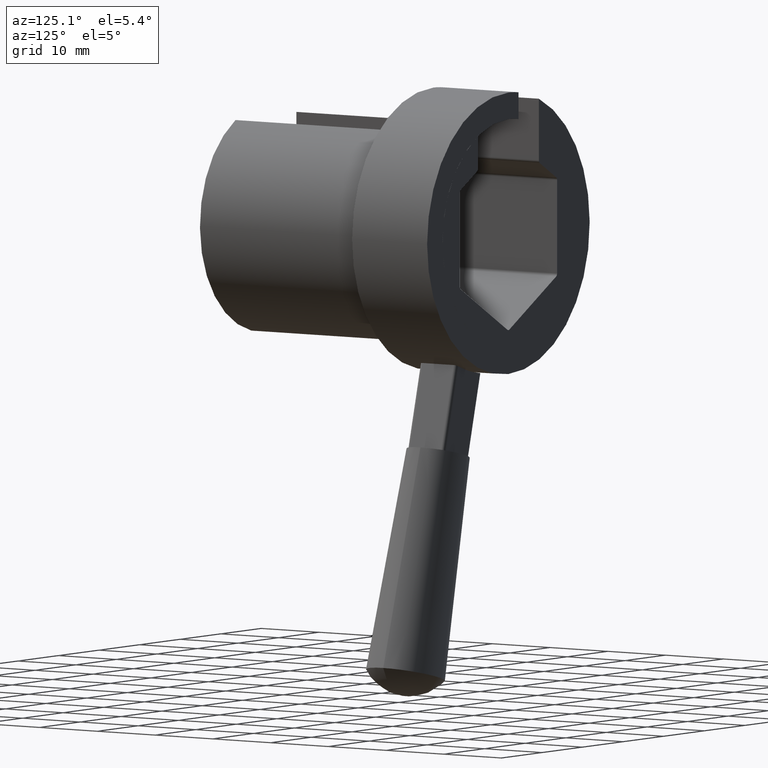
[diagram: clean part render]
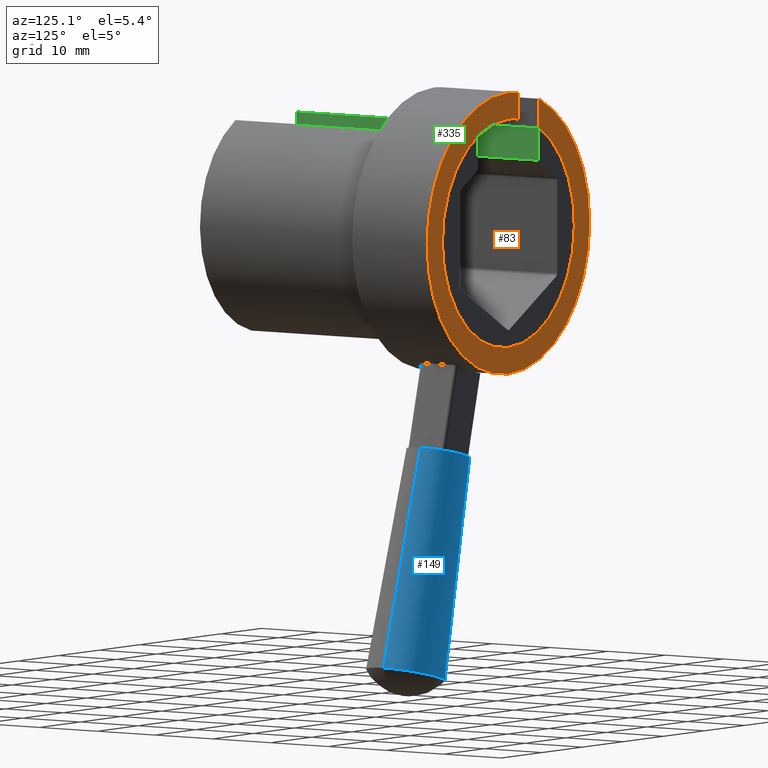
[diagram: same view with three faces highlighted in distinct colors, each labeled with its STEP entity id]
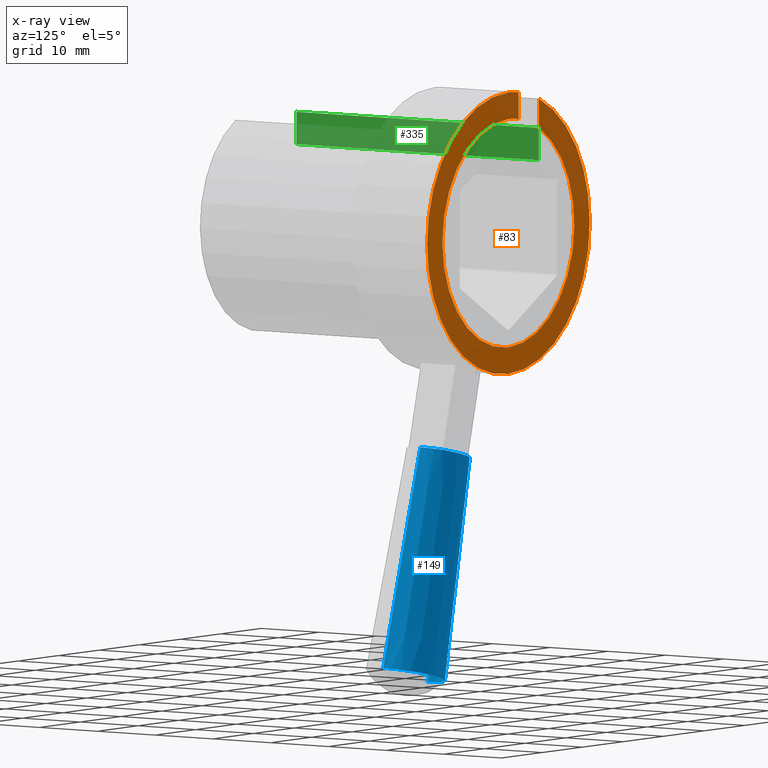
[diagram: x-ray of the same camera — body ghosted, the three highlighted faces saturated]
A machine part, auxiliary view with three faces highlighted in distinct colors.
The next image is the same camera in x-ray (body ghosted, the three faces saturated) — at least one of them is partly hidden behind the body in this view.
Their STEP definitions:

[orange] entity #83 — the highlighted planar face has unit normal (0, 1, 0).
#2 = VERTEX_POINT ( 'NONE', #691 ) ;
#12 = VERTEX_POINT ( 'NONE', #602 ) ;
#14 = ORIENTED_EDGE ( 'NONE', *, *, #365, .T. ) ;
#15 = ORIENTED_EDGE ( 'NONE', *, *, #245, .T. ) ;
#16 = ORIENTED_EDGE ( 'NONE', *, *, #184, .T. ) ;
#17 = ORIENTED_EDGE ( 'NONE', *, *, #420, .T. ) ;
#18 = ORIENTED_EDGE ( 'NONE', *, *, #180, .T. ) ;
#19 = ORIENTED_EDGE ( 'NONE', *, *, #359, .T. ) ;
#80 = ORIENTED_EDGE ( 'NONE', *, *, #430, .T. ) ;
#81 = EDGE_LOOP ( 'NONE', ( #82, #80, #18, #14, #15, #16, #17, #19 ) ) ;
#82 = ORIENTED_EDGE ( 'NONE', *, *, #463, .T. ) ;
#83 = ADVANCED_FACE ( 'NONE', ( #590 ), #589, .T. ) ;
#178 = VERTEX_POINT ( 'NONE', #787 ) ;
#180 = EDGE_CURVE ( 'NONE', #428, #294, #785, .T. ) ;
#184 = EDGE_CURVE ( 'NONE', #178, #231, #780, .T. ) ;
#231 = VERTEX_POINT ( 'NONE', #872 ) ;
#245 = EDGE_CURVE ( 'NONE', #12, #178, #850, .T. ) ;
#294 = VERTEX_POINT ( 'NONE', #1071 ) ;
#359 = EDGE_CURVE ( 'NONE', #360, #464, #966, .T. ) ;
#360 = VERTEX_POINT ( 'NONE', #946 ) ;
#365 = EDGE_CURVE ( 'NONE', #294, #12, #1039, .T. ) ;
#420 = EDGE_CURVE ( 'NONE', #231, #360, #1325, .T. ) ;
#428 = VERTEX_POINT ( 'NONE', #1304 ) ;
#430 = EDGE_CURVE ( 'NONE', #2, #428, #1303, .T. ) ;
#463 = EDGE_CURVE ( 'NONE', #464, #2, #1174, .T. ) ;
#464 = VERTEX_POINT ( 'NONE', #1169 ) ;
#585 = DIRECTION ( 'NONE',  ( 0.0000000000000000000, 0.0000000000000000000, 1.000000000000000000 ) ) ;
#586 = DIRECTION ( 'NONE',  ( 0.0000000000000000000, 1.000000000000000000, 0.0000000000000000000 ) ) ;
#587 = CARTESIAN_POINT ( 'NONE',  ( 0.0000000000000000000, 41.99900000000000200, 0.0000000000000000000 ) ) ;
#588 = AXIS2_PLACEMENT_3D ( 'NONE', #587, #586, #585 ) ;
#589 = PLANE ( 'NONE',  #588 ) ;
#590 = FACE_OUTER_BOUND ( 'NONE', #81, .T. ) ;
#602 = CARTESIAN_POINT ( 'NONE',  ( -2.500000000000000000, 41.99900000000000200, 19.87337163140668400 ) ) ;
#691 = CARTESIAN_POINT ( 'NONE',  ( 1.990051048614448900E-015, 41.99900000000000200, -16.25000000000000000 ) ) ;
#777 = DIRECTION ( 'NONE',  ( 0.0000000000000000000, 0.0000000000000000000, 1.000000000000000000 ) ) ;
#778 = DIRECTION ( 'NONE',  ( 0.0000000000000000000, 1.000000000000000000, 0.0000000000000000000 ) ) ;
#779 = AXIS2_PLACEMENT_3D ( 'NONE', #786, #778, #777 ) ;
#780 = CIRCLE ( 'NONE', #779, 20.02999999999999800 ) ;
#781 = DIRECTION ( 'NONE',  ( 0.0000000000000000000, 0.0000000000000000000, 1.000000000000000000 ) ) ;
#782 = DIRECTION ( 'NONE',  ( 0.0000000000000000000, -1.000000000000000000, 0.0000000000000000000 ) ) ;
#783 = CARTESIAN_POINT ( 'NONE',  ( 0.0000000000000000000, 41.99900000000000200, 0.0000000000000000000 ) ) ;
#784 = AXIS2_PLACEMENT_3D ( 'NONE', #783, #782, #781 ) ;
#785 = CIRCLE ( 'NONE', #784, 16.25000000000000000 ) ;
#786 = CARTESIAN_POINT ( 'NONE',  ( 0.0000000000000000000, 41.99900000000000200, 0.0000000000000000000 ) ) ;
#787 = CARTESIAN_POINT ( 'NONE',  ( 0.0000000000000000000, 41.99900000000000200, 20.02999999999999800 ) ) ;
#846 = DIRECTION ( 'NONE',  ( 0.0000000000000000000, 0.0000000000000000000, 1.000000000000000000 ) ) ;
#847 = DIRECTION ( 'NONE',  ( 0.0000000000000000000, 1.000000000000000000, 0.0000000000000000000 ) ) ;
#848 = CARTESIAN_POINT ( 'NONE',  ( 0.0000000000000000000, 41.99900000000000200, 0.0000000000000000000 ) ) ;
#849 = AXIS2_PLACEMENT_3D ( 'NONE', #848, #847, #846 ) ;
#850 = CIRCLE ( 'NONE', #849, 20.02999999999999800 ) ;
#872 = CARTESIAN_POINT ( 'NONE',  ( 2.452967538692148000E-015, 41.99900000000000200, -20.02999999999999800 ) ) ;
#946 = CARTESIAN_POINT ( 'NONE',  ( -7.500000000000014200, 41.99900000000000200, 18.57285384640711700 ) ) ;
#947 = DIRECTION ( 'NONE',  ( 0.0000000000000000000, 0.0000000000000000000, -1.000000000000000000 ) ) ;
#948 = VECTOR ( 'NONE', #947, 1000.000000000000000 ) ;
#965 = CARTESIAN_POINT ( 'NONE',  ( -7.500000000000001800, 41.99900000000000200, 14.41570324333849300 ) ) ;
#966 = LINE ( 'NONE', #965, #948 ) ;
#1036 = DIRECTION ( 'NONE',  ( 0.0000000000000000000, 0.0000000000000000000, 1.000000000000000000 ) ) ;
#1037 = VECTOR ( 'NONE', #1036, 1000.000000000000000 ) ;
#1038 = CARTESIAN_POINT ( 'NONE',  ( -2.500000000000000000, 41.99900000000000200, 16.05654072333141300 ) ) ;
#1039 = LINE ( 'NONE', #1038, #1037 ) ;
#1071 = CARTESIAN_POINT ( 'NONE',  ( -2.500000000000000000, 41.99900000000000200, 16.05654072333141300 ) ) ;
#1169 = CARTESIAN_POINT ( 'NONE',  ( -7.500000000000001800, 41.99900000000000200, 14.41570324333849300 ) ) ;
#1170 = DIRECTION ( 'NONE',  ( 0.0000000000000000000, 0.0000000000000000000, 1.000000000000000000 ) ) ;
#1171 = DIRECTION ( 'NONE',  ( 0.0000000000000000000, -1.000000000000000000, 0.0000000000000000000 ) ) ;
#1172 = CARTESIAN_POINT ( 'NONE',  ( 0.0000000000000000000, 41.99900000000000200, 0.0000000000000000000 ) ) ;
#1173 = AXIS2_PLACEMENT_3D ( 'NONE', #1172, #1171, #1170 ) ;
#1174 = CIRCLE ( 'NONE', #1173, 16.25000000000000000 ) ;
#1299 = DIRECTION ( 'NONE',  ( 0.0000000000000000000, 0.0000000000000000000, 1.000000000000000000 ) ) ;
#1300 = DIRECTION ( 'NONE',  ( 0.0000000000000000000, -1.000000000000000000, 0.0000000000000000000 ) ) ;
#1301 = CARTESIAN_POINT ( 'NONE',  ( 0.0000000000000000000, 41.99900000000000200, 0.0000000000000000000 ) ) ;
#1302 = AXIS2_PLACEMENT_3D ( 'NONE', #1301, #1300, #1299 ) ;
#1303 = CIRCLE ( 'NONE', #1302, 16.25000000000000000 ) ;
#1304 = CARTESIAN_POINT ( 'NONE',  ( 0.0000000000000000000, 41.99900000000000200, 16.25000000000000000 ) ) ;
#1321 = DIRECTION ( 'NONE',  ( 0.0000000000000000000, 0.0000000000000000000, 1.000000000000000000 ) ) ;
#1322 = DIRECTION ( 'NONE',  ( 0.0000000000000000000, 1.000000000000000000, 0.0000000000000000000 ) ) ;
#1323 = CARTESIAN_POINT ( 'NONE',  ( 0.0000000000000000000, 41.99900000000000200, 0.0000000000000000000 ) ) ;
#1324 = AXIS2_PLACEMENT_3D ( 'NONE', #1323, #1322, #1321 ) ;
#1325 = CIRCLE ( 'NONE', #1324, 20.02999999999999800 ) ;

[blue] entity #149 — the highlighted conical surface has half-angle 2 deg.
#55 = EDGE_LOOP ( 'NONE', ( #67, #71, #56, #57 ) ) ;
#56 = ORIENTED_EDGE ( 'NONE', *, *, #165, .F. ) ;
#57 = ORIENTED_EDGE ( 'NONE', *, *, #58, .F. ) ;
#58 = EDGE_CURVE ( 'NONE', #68, #77, #581, .T. ) ;
#67 = ORIENTED_EDGE ( 'NONE', *, *, #69, .T. ) ;
#68 = VERTEX_POINT ( 'NONE', #621 ) ;
#69 = EDGE_CURVE ( 'NONE', #68, #70, #620, .T. ) ;
#70 = VERTEX_POINT ( 'NONE', #615 ) ;
#71 = ORIENTED_EDGE ( 'NONE', *, *, #72, .T. ) ;
#72 = EDGE_CURVE ( 'NONE', #70, #79, #614, .T. ) ;
#77 = VERTEX_POINT ( 'NONE', #593 ) ;
#79 = VERTEX_POINT ( 'NONE', #591 ) ;
#149 = ADVANCED_FACE ( 'NONE', ( #708 ), #707, .T. ) ;
#165 = EDGE_CURVE ( 'NONE', #77, #79, #899, .T. ) ;
#578 = DIRECTION ( 'NONE',  ( 0.2177987146805489500, -4.927377202949121400E-032, -0.9759937089364361100 ) ) ;
#579 = VECTOR ( 'NONE', #578, 1000.000000000000100 ) ;
#580 = CARTESIAN_POINT ( 'NONE',  ( 3.683084879451752300, 35.49899999999996700, -32.13776261301890000 ) ) ;
#581 = LINE ( 'NONE', #580, #579 ) ;
#591 = CARTESIAN_POINT ( 'NONE',  ( 21.57936069182238700, 35.49899999999996700, -60.54762550692004200 ) ) ;
#593 = CARTESIAN_POINT ( 'NONE',  ( 10.65689200410369400, 35.49899999999996700, -63.38859846381583900 ) ) ;
#611 = DIRECTION ( 'NONE',  ( 0.2853500474899683900, 4.273955692857101000E-018, -0.9584233669926212100 ) ) ;
#612 = VECTOR ( 'NONE', #611, 1000.000000000000100 ) ;
#613 = CARTESIAN_POINT ( 'NONE',  ( 12.44259330031568600, 35.49899999999996700, -29.85938331518151000 ) ) ;
#614 = LINE ( 'NONE', #613, #612 ) ;
#615 = CARTESIAN_POINT ( 'NONE',  ( 12.44259330031568400, 35.49899999999996700, -29.85938331518151000 ) ) ;
#616 = DIRECTION ( 'NONE',  ( -0.9677980944146167300, 0.0000000000000000000, -0.2517277268149784000 ) ) ;
#617 = DIRECTION ( 'NONE',  ( 0.2517277268149788500, -4.930380657631323800E-032, -0.9677980944146167300 ) ) ;
#618 = CARTESIAN_POINT ( 'NONE',  ( 8.062839089883718600, 35.49899999999996700, -30.99857296410020500 ) ) ;
#619 = AXIS2_PLACEMENT_3D ( 'NONE', #618, #617, #616 ) ;
#620 = CIRCLE ( 'NONE', #619, 4.525483399593908600 ) ;
#621 = CARTESIAN_POINT ( 'NONE',  ( 3.683084879451752300, 35.49899999999996700, -32.13776261301890000 ) ) ;
#703 = DIRECTION ( 'NONE',  ( -0.9677980944146167300, 0.0000000000000000000, -0.2517277268149784000 ) ) ;
#704 = DIRECTION ( 'NONE',  ( 0.2517277268149788500, -4.930380657631323800E-032, -0.9677980944146167300 ) ) ;
#705 = CARTESIAN_POINT ( 'NONE',  ( 8.062839089883718600, 35.49899999999996700, -30.99857296410020500 ) ) ;
#706 = AXIS2_PLACEMENT_3D ( 'NONE', #705, #704, #703 ) ;
#707 = CONICAL_SURFACE ( 'NONE', #706, 4.525483399593908600, 0.03490658503988666700 ) ;
#708 = FACE_OUTER_BOUND ( 'NONE', #55, .T. ) ;
#895 = DIRECTION ( 'NONE',  ( -0.9677980944146167300, 0.0000000000000000000, -0.2517277268149787900 ) ) ;
#896 = DIRECTION ( 'NONE',  ( 0.2517277268149788500, -4.930380657631323800E-032, -0.9677980944146167300 ) ) ;
#897 = CARTESIAN_POINT ( 'NONE',  ( 16.11812634796304500, 35.49899999999996700, -61.96811198536794100 ) ) ;
#898 = AXIS2_PLACEMENT_3D ( 'NONE', #897, #896, #895 ) ;
#899 = CIRCLE ( 'NONE', #898, 5.642948023329837200 ) ;

[green] entity #335 — the highlighted planar face has unit normal (-1, 0, -0).
#335 = ADVANCED_FACE ( 'NONE', ( #1150 ), #1149, .F. ) ;
#336 = EDGE_LOOP ( 'NONE', ( #337, #340, #343, #381 ) ) ;
#337 = ORIENTED_EDGE ( 'NONE', *, *, #338, .T. ) ;
#338 = EDGE_CURVE ( 'NONE', #398, #339, #1144, .T. ) ;
#339 = VERTEX_POINT ( 'NONE', #1140 ) ;
#340 = ORIENTED_EDGE ( 'NONE', *, *, #341, .T. ) ;
#341 = EDGE_CURVE ( 'NONE', #339, #342, #1139, .T. ) ;
#342 = VERTEX_POINT ( 'NONE', #1135 ) ;
#343 = ORIENTED_EDGE ( 'NONE', *, *, #380, .F. ) ;
#380 = EDGE_CURVE ( 'NONE', #392, #342, #1010, .T. ) ;
#381 = ORIENTED_EDGE ( 'NONE', *, *, #400, .T. ) ;
#392 = VERTEX_POINT ( 'NONE', #983 ) ;
#398 = VERTEX_POINT ( 'NONE', #1062 ) ;
#400 = EDGE_CURVE ( 'NONE', #392, #398, #1061, .T. ) ;
#983 = CARTESIAN_POINT ( 'NONE',  ( -7.500000000000000900, 42.00000000000000000, 14.41570324333849300 ) ) ;
#1007 = DIRECTION ( 'NONE',  ( 1.718158283885855600E-016, 0.0000000000000000000, -1.000000000000000000 ) ) ;
#1008 = VECTOR ( 'NONE', #1007, 1000.000000000000000 ) ;
#1009 = CARTESIAN_POINT ( 'NONE',  ( -7.500000000000000000, 42.00000000000000000, 9.367496997597598400 ) ) ;
#1010 = LINE ( 'NONE', #1009, #1008 ) ;
#1058 = DIRECTION ( 'NONE',  ( 0.0000000000000000000, -1.000000000000000000, 0.0000000000000000000 ) ) ;
#1059 = VECTOR ( 'NONE', #1058, 1000.000000000000000 ) ;
#1060 = CARTESIAN_POINT ( 'NONE',  ( -7.500000000000000900, 42.00000000000000000, 14.41570324333849300 ) ) ;
#1061 = LINE ( 'NONE', #1060, #1059 ) ;
#1062 = CARTESIAN_POINT ( 'NONE',  ( -7.500000000000000900, 0.0000000000000000000, 14.41570324333849300 ) ) ;
#1135 = CARTESIAN_POINT ( 'NONE',  ( -7.500000000000000000, 42.00000000000000000, 9.814954576223641400 ) ) ;
#1136 = DIRECTION ( 'NONE',  ( 0.0000000000000000000, 1.000000000000000000, 0.0000000000000000000 ) ) ;
#1137 = VECTOR ( 'NONE', #1136, 1000.000000000000000 ) ;
#1138 = CARTESIAN_POINT ( 'NONE',  ( -7.500000000000000000, 42.00000000000000000, 9.814954576223641400 ) ) ;
#1139 = LINE ( 'NONE', #1138, #1137 ) ;
#1140 = CARTESIAN_POINT ( 'NONE',  ( -7.500000000000000000, 0.0000000000000000000, 9.814954576223641400 ) ) ;
#1141 = DIRECTION ( 'NONE',  ( 1.718158283885855600E-016, 0.0000000000000000000, -1.000000000000000000 ) ) ;
#1142 = VECTOR ( 'NONE', #1141, 1000.000000000000000 ) ;
#1143 = CARTESIAN_POINT ( 'NONE',  ( -7.500000000000000000, 0.0000000000000000000, 9.367496997597598400 ) ) ;
#1144 = LINE ( 'NONE', #1143, #1142 ) ;
#1145 = DIRECTION ( 'NONE',  ( -1.718158283885855800E-016, 0.0000000000000000000, 1.000000000000000000 ) ) ;
#1146 = DIRECTION ( 'NONE',  ( -1.000000000000000000, 0.0000000000000000000, -1.718158283885855800E-016 ) ) ;
#1147 = CARTESIAN_POINT ( 'NONE',  ( -7.500000000000000000, 42.00000000000000000, 9.367496997597598400 ) ) ;
#1148 = AXIS2_PLACEMENT_3D ( 'NONE', #1147, #1146, #1145 ) ;
#1149 = PLANE ( 'NONE',  #1148 ) ;
#1150 = FACE_OUTER_BOUND ( 'NONE', #336, .T. ) ;